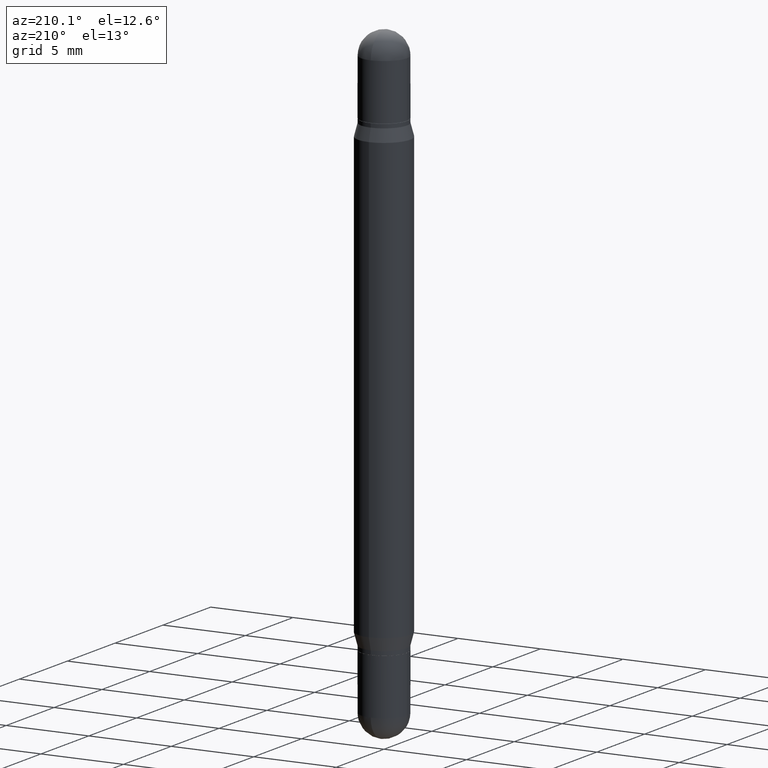
[diagram: clean part render]
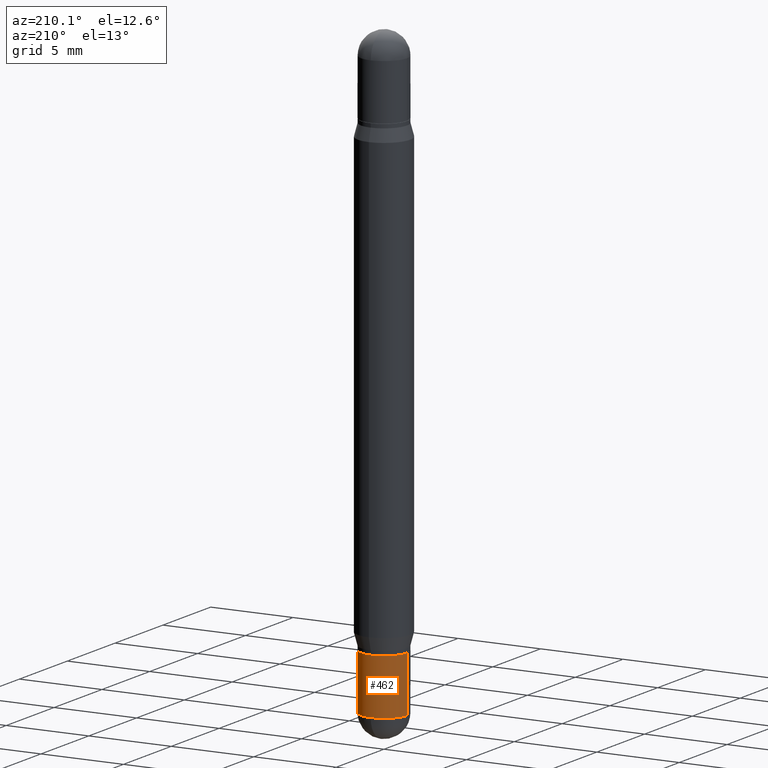
[diagram: same view with one face highlighted and labeled with its STEP entity id]
A machine part, auxiliary view. The second image highlights one B-rep face of the part: STEP entity #462.
In plain terms, the highlighted cylindrical surface (edge-blend (fillet) strip) has radius 1.3894 mm, axis along (-0, 0, 1).
Its self-contained STEP definition (entity closure, byte-faithful):
#3 = EDGE_CURVE ( 'NONE', #1012, #339, #314, .T. ) ;
#6 = CARTESIAN_POINT ( 'NONE',  ( 3.210900542521084585E-29, -4.584314997901050598E-15, -1.313000000000000167 ) ) ;
#29 = VECTOR ( 'NONE', #740, 39.37007874015748143 ) ;
#94 = CIRCLE ( 'NONE', #312, 0.05469999999999999862 ) ;
#95 = VERTEX_POINT ( 'NONE', #561 ) ;
#102 = DIRECTION ( 'NONE',  ( 1.000000000000000000, -6.982962677686259611E-15, 0.000000000000000000 ) ) ;
#123 = DIRECTION ( 'NONE',  ( 1.000000000000000000, -6.982962677686266711E-15, 4.876176775795935793E-29 ) ) ;
#125 = CARTESIAN_POINT ( 'NONE',  ( -0.05470000000000000556, -4.426609612004749998E-15, -1.445300000000000029 ) ) ;
#206 = DIRECTION ( 'NONE',  ( -2.445468806185136597E-29, 3.491481338843145583E-15, 1.000000000000000000 ) ) ;
#257 = CARTESIAN_POINT ( 'NONE',  ( 0.05470000000000000556, -5.197244546934962984E-15, -1.445300000000000029 ) ) ;
#286 = CARTESIAN_POINT ( 'NONE',  ( 0.05469999999999999862, -4.966283056370488990E-15, -1.313000000000000167 ) ) ;
#289 = EDGE_CURVE ( 'NONE', #755, #95, #623, .T. ) ;
#297 = CARTESIAN_POINT ( 'NONE',  ( 0.05469999999999999862, -3.819680584694387859E-16, 2.667268696360376954E-30 ) ) ;
#302 = DIRECTION ( 'NONE',  ( 1.000000000000000000, -6.982962677686259611E-15, 0.000000000000000000 ) ) ;
#312 = AXIS2_PLACEMENT_3D ( 'NONE', #6, #1042, #352 ) ;
#314 = LINE ( 'NONE', #297, #29 ) ;
#327 = AXIS2_PLACEMENT_3D ( 'NONE', #556, #560, #123 ) ;
#339 = VERTEX_POINT ( 'NONE', #286 ) ;
#352 = DIRECTION ( 'NONE',  ( 1.000000000000000000, -6.982962677686260400E-15, 0.000000000000000000 ) ) ;
#389 = CYLINDRICAL_SURFACE ( 'NONE', #327, 0.05469999999999999862 ) ;
#393 = EDGE_CURVE ( 'NONE', #339, #95, #94, .T. ) ;
#407 = VERTEX_POINT ( 'NONE', #570 ) ;
#442 = DIRECTION ( 'NONE',  ( -2.445468806185136877E-29, 3.491481338843145188E-15, 1.000000000000000000 ) ) ;
#462 = ADVANCED_FACE ( 'NONE', ( #739 ), #389, .T. ) ;
#481 = ORIENTED_EDGE ( 'NONE', *, *, #289, .T. ) ;
#522 = ORIENTED_EDGE ( 'NONE', *, *, #532, .T. ) ;
#532 = EDGE_CURVE ( 'NONE', #407, #755, #730, .T. ) ;
#545 = VECTOR ( 'NONE', #442, 39.37007874015748143 ) ;
#556 = CARTESIAN_POINT ( 'NONE',  ( 0.000000000000000000, 0.000000000000000000, 0.000000000000000000 ) ) ;
#560 = DIRECTION ( 'NONE',  ( -2.445468806185136597E-29, 3.491481338843145583E-15, 1.000000000000000000 ) ) ;
#561 = CARTESIAN_POINT ( 'NONE',  ( -0.05469999999999999862, -4.426609612004749998E-15, -1.313000000000000167 ) ) ;
#570 = CARTESIAN_POINT ( 'NONE',  ( 3.886668764608108330E-16, 0.05469999999999505119, -1.445300000000000251 ) ) ;
#623 = LINE ( 'NONE', #983, #545 ) ;
#634 = CARTESIAN_POINT ( 'NONE',  ( 3.534436065579377749E-29, -5.046237979029997798E-15, -1.445300000000000029 ) ) ;
#730 = CIRCLE ( 'NONE', #892, 0.05470000000000000556 ) ;
#739 = FACE_OUTER_BOUND ( 'NONE', #853, .T. ) ;
#740 = DIRECTION ( 'NONE',  ( -2.445468806185136877E-29, 3.491481338843145188E-15, 1.000000000000000000 ) ) ;
#755 = VERTEX_POINT ( 'NONE', #125 ) ;
#777 = EDGE_CURVE ( 'NONE', #1012, #407, #991, .T. ) ;
#828 = ORIENTED_EDGE ( 'NONE', *, *, #393, .F. ) ;
#853 = EDGE_LOOP ( 'NONE', ( #522, #481, #828, #1045, #1050 ) ) ;
#873 = AXIS2_PLACEMENT_3D ( 'NONE', #895, #206, #102 ) ;
#892 = AXIS2_PLACEMENT_3D ( 'NONE', #634, #989, #302 ) ;
#895 = CARTESIAN_POINT ( 'NONE',  ( 3.534436065579377749E-29, -5.046237979029997798E-15, -1.445300000000000029 ) ) ;
#983 = CARTESIAN_POINT ( 'NONE',  ( -0.05469999999999999862, 3.886668764607747919E-16, -2.690657494369433708E-30 ) ) ;
#989 = DIRECTION ( 'NONE',  ( -2.445468806185136597E-29, 3.491481338843145583E-15, 1.000000000000000000 ) ) ;
#991 = CIRCLE ( 'NONE', #873, 0.05470000000000000556 ) ;
#1012 = VERTEX_POINT ( 'NONE', #257 ) ;
#1042 = DIRECTION ( 'NONE',  ( -2.445468806185136597E-29, 3.491481338843145583E-15, 1.000000000000000000 ) ) ;
#1045 = ORIENTED_EDGE ( 'NONE', *, *, #3, .F. ) ;
#1050 = ORIENTED_EDGE ( 'NONE', *, *, #777, .T. ) ;